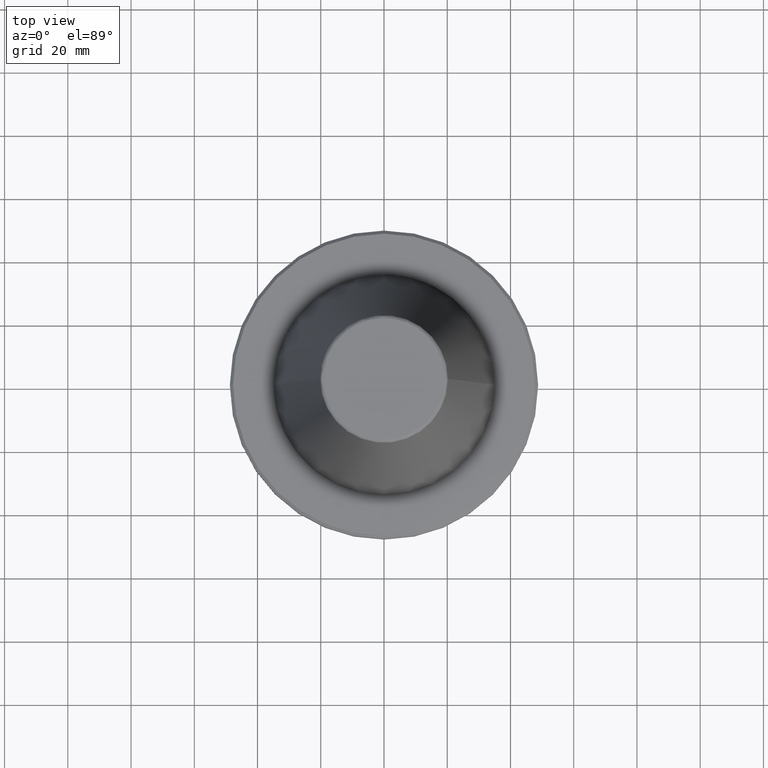
[diagram: clean part render]
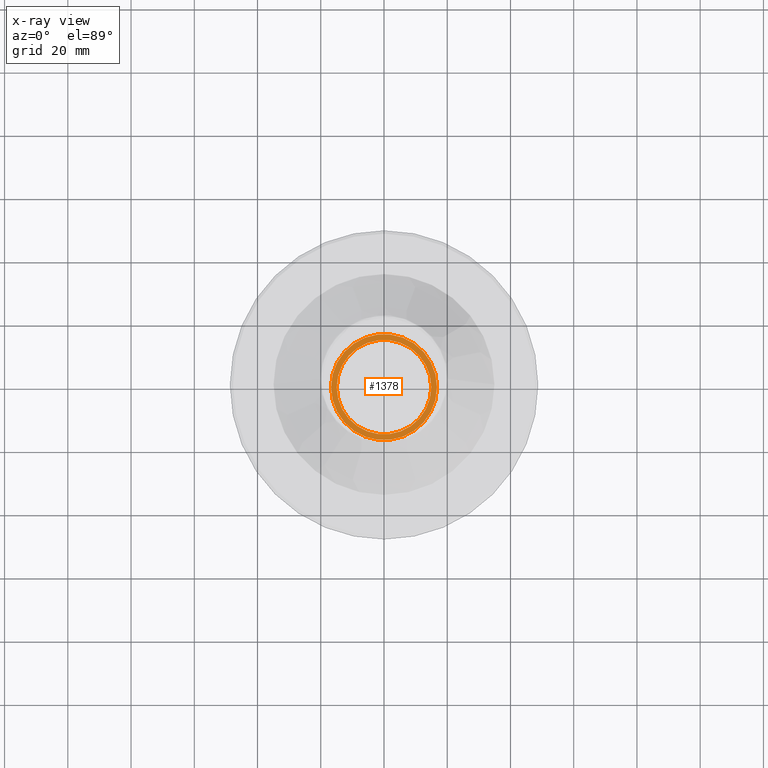
[diagram: x-ray — body ghosted, one internal face saturated and labeled with its STEP entity id]
A machine part, top view, then the same camera in x-ray: the body is ghosted and one INTERNAL B-rep face — a face not visible from any outside direction — is saturated and labeled: STEP entity #1378.
In plain terms, the highlighted planar face has unit normal (0, 0, 1).
Its self-contained STEP definition (entity closure, byte-faithful):
#16 = DIRECTION ( 'NONE',  ( 1.000000000000000000, 0.0000000000000000000, -0.0000000000000000000 ) ) ;
#23 = DIRECTION ( 'NONE',  ( 0.0000000000000000000, 0.0000000000000000000, 1.000000000000000000 ) ) ;
#30 = CARTESIAN_POINT ( 'NONE',  ( 0.0000000000000000000, -14.94999999999999900, -49.60000000000001600 ) ) ;
#35 = PLANE ( 'NONE',  #1607 ) ;
#46 = CARTESIAN_POINT ( 'NONE',  ( 14.94999999999999900, 0.0000000000000000000, -49.60000000000001600 ) ) ;
#192 = EDGE_LOOP ( 'NONE', ( #711, #2271 ) ) ;
#338 = DIRECTION ( 'NONE',  ( 0.0000000000000000000, 0.0000000000000000000, 1.000000000000000000 ) ) ;
#491 = FACE_BOUND ( 'NONE', #192, .T. ) ;
#542 = VERTEX_POINT ( 'NONE', #1288 ) ;
#553 = EDGE_CURVE ( 'NONE', #1845, #1918, #2238, .T. ) ;
#601 = EDGE_CURVE ( 'NONE', #542, #1342, #1821, .T. ) ;
#645 = AXIS2_PLACEMENT_3D ( 'NONE', #1053, #1052, #1050 ) ;
#700 = EDGE_CURVE ( 'NONE', #1918, #1845, #2049, .T. ) ;
#711 = ORIENTED_EDGE ( 'NONE', *, *, #1933, .F. ) ;
#965 = DIRECTION ( 'NONE',  ( -1.000000000000000000, 0.0000000000000000000, 0.0000000000000000000 ) ) ;
#967 = DIRECTION ( 'NONE',  ( -0.0000000000000000000, -0.0000000000000000000, 1.000000000000000000 ) ) ;
#970 = CARTESIAN_POINT ( 'NONE',  ( 0.0000000000000000000, 0.0000000000000000000, -49.60000000000001600 ) ) ;
#1050 = DIRECTION ( 'NONE',  ( 1.000000000000000000, 0.0000000000000000000, 0.0000000000000000000 ) ) ;
#1052 = DIRECTION ( 'NONE',  ( 0.0000000000000000000, 0.0000000000000000000, 1.000000000000000000 ) ) ;
#1053 = CARTESIAN_POINT ( 'NONE',  ( 0.0000000000000000000, 0.0000000000000000000, -49.60000000000001600 ) ) ;
#1147 = DIRECTION ( 'NONE',  ( 1.000000000000000000, 0.0000000000000000000, 0.0000000000000000000 ) ) ;
#1148 = DIRECTION ( 'NONE',  ( -1.000000000000000000, 0.0000000000000000000, 0.0000000000000000000 ) ) ;
#1150 = DIRECTION ( 'NONE',  ( -0.0000000000000000000, -0.0000000000000000000, 1.000000000000000000 ) ) ;
#1152 = CARTESIAN_POINT ( 'NONE',  ( 0.0000000000000000000, 0.0000000000000000000, -49.60000000000001600 ) ) ;
#1203 = CARTESIAN_POINT ( 'NONE',  ( 0.0000000000000000000, 0.0000000000000000000, -49.60000000000001600 ) ) ;
#1215 = AXIS2_PLACEMENT_3D ( 'NONE', #970, #967, #965 ) ;
#1288 = CARTESIAN_POINT ( 'NONE',  ( -14.94999999999999900, 1.830846964725293300E-015, -49.60000000000001600 ) ) ;
#1342 = VERTEX_POINT ( 'NONE', #46 ) ;
#1378 = ADVANCED_FACE ( 'NONE', ( #491, #1797 ), #35, .T. ) ;
#1461 = CARTESIAN_POINT ( 'NONE',  ( -16.74999999999999600, 0.0000000000000000000, -49.60000000000001600 ) ) ;
#1607 = AXIS2_PLACEMENT_3D ( 'NONE', #30, #23, #16 ) ;
#1639 = EDGE_LOOP ( 'NONE', ( #1643, #1969 ) ) ;
#1643 = ORIENTED_EDGE ( 'NONE', *, *, #700, .T. ) ;
#1687 = AXIS2_PLACEMENT_3D ( 'NONE', #1203, #338, #1147 ) ;
#1797 = FACE_OUTER_BOUND ( 'NONE', #1639, .T. ) ;
#1821 = CIRCLE ( 'NONE', #645, 14.94999999999999900 ) ;
#1845 = VERTEX_POINT ( 'NONE', #2035 ) ;
#1851 = CIRCLE ( 'NONE', #1687, 14.94999999999999900 ) ;
#1918 = VERTEX_POINT ( 'NONE', #1461 ) ;
#1933 = EDGE_CURVE ( 'NONE', #1342, #542, #1851, .T. ) ;
#1969 = ORIENTED_EDGE ( 'NONE', *, *, #553, .T. ) ;
#2035 = CARTESIAN_POINT ( 'NONE',  ( 16.74999999999999600, 2.075776324554763200E-015, -49.60000000000001600 ) ) ;
#2049 = CIRCLE ( 'NONE', #1215, 16.74999999999999600 ) ;
#2238 = CIRCLE ( 'NONE', #2242, 16.74999999999999600 ) ;
#2242 = AXIS2_PLACEMENT_3D ( 'NONE', #1152, #1150, #1148 ) ;
#2271 = ORIENTED_EDGE ( 'NONE', *, *, #601, .F. ) ;